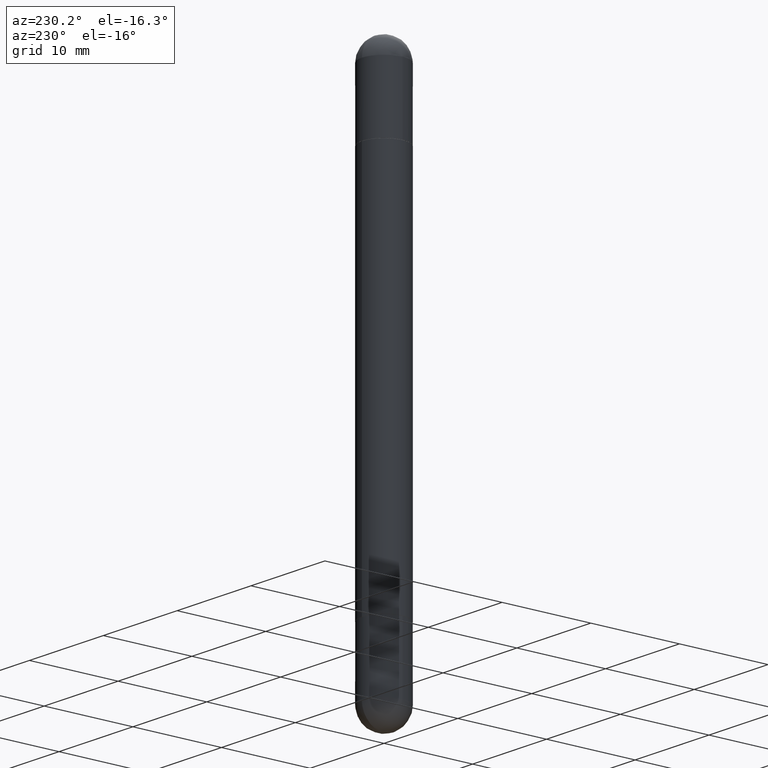
[diagram: clean part render]
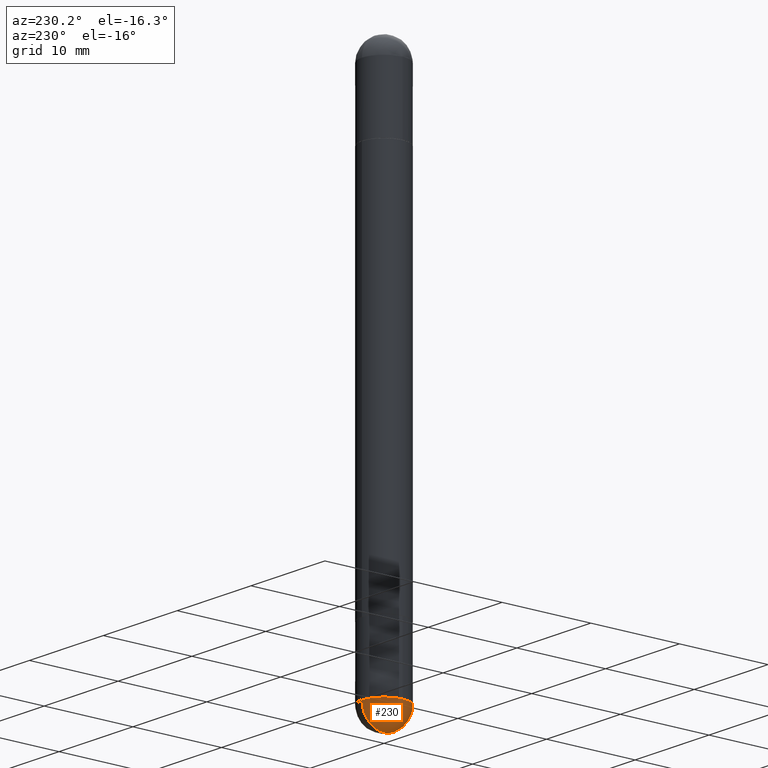
[diagram: same view with one face highlighted and labeled with its STEP entity id]
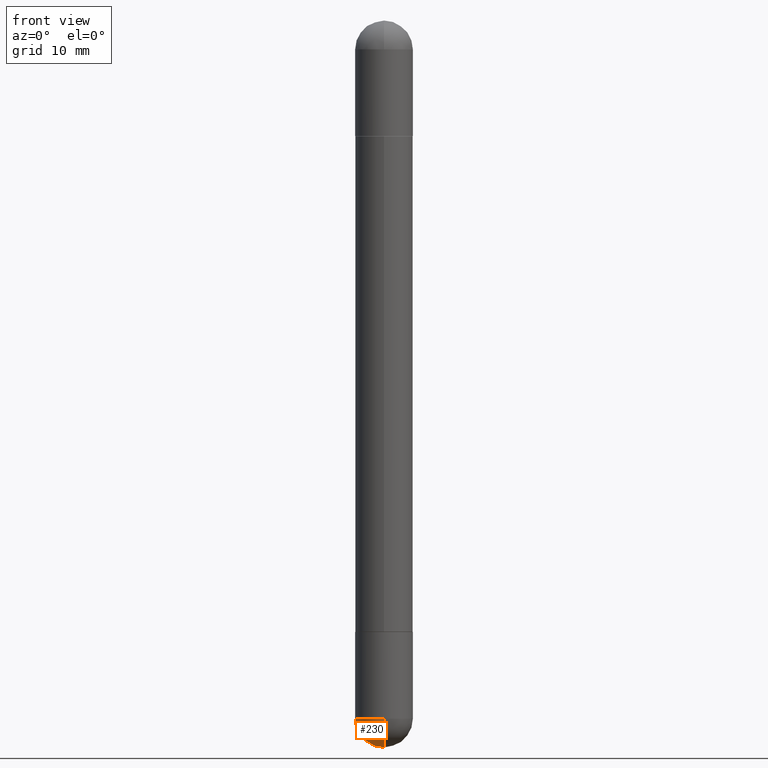
[diagram: same view with one face highlighted and labeled with its STEP entity id]
A machine part, auxiliary view. The second image highlights one B-rep face of the part: STEP entity #230.
A second angle (front view) of the same face is appended — the face is thin or edge-on in the first view.
In plain terms, the highlighted spherical surface has radius 2.5006 mm.
Its self-contained STEP definition (entity closure, byte-faithful):
#6 = DIRECTION ( 'NONE',  ( -1.000000000000000000, 7.105427357601001070E-15, -4.926315508542082329E-29 ) ) ;
#40 = CARTESIAN_POINT ( 'NONE',  ( -6.995293233557624958E-16, -0.09845000000000865559, -2.381850000000000023 ) ) ;
#62 = VERTEX_POINT ( 'NONE', #270 ) ;
#108 = SPHERICAL_SURFACE ( 'NONE', #310, 0.09845000000000017626 ) ;
#112 = CIRCLE ( 'NONE', #743, 0.09845000000000000973 ) ;
#115 = DIRECTION ( 'NONE',  ( 1.000000000000000000, -6.982962677686273810E-15, 0.000000000000000000 ) ) ;
#131 = CARTESIAN_POINT ( 'NONE',  ( 6.874726756182700483E-16, 0.09844999999999154427, -2.381850000000000911 ) ) ;
#164 = AXIS2_PLACEMENT_3D ( 'NONE', #436, #6, #259 ) ;
#167 = FACE_OUTER_BOUND ( 'NONE', #523, .T. ) ;
#201 = ORIENTED_EDGE ( 'NONE', *, *, #791, .F. ) ;
#209 = AXIS2_PLACEMENT_3D ( 'NONE', #359, #553, #669 ) ;
#230 = ADVANCED_FACE ( 'NONE', ( #167 ), #108, .T. ) ;
#248 = VERTEX_POINT ( 'NONE', #40 ) ;
#255 = EDGE_CURVE ( 'NONE', #62, #248, #112, .T. ) ;
#259 = DIRECTION ( 'NONE',  ( -7.105427357601001070E-15, -1.000000000000000000, 0.000000000000000000 ) ) ;
#269 = ORIENTED_EDGE ( 'NONE', *, *, #255, .F. ) ;
#270 = CARTESIAN_POINT ( 'NONE',  ( -0.09845000000000000973, -7.101225570921009731E-15, -2.381850000000000467 ) ) ;
#285 = CIRCLE ( 'NONE', #164, 0.09845000000000017626 ) ;
#289 = CARTESIAN_POINT ( 'NONE',  ( 5.824739876012068780E-29, -8.316184826923546689E-15, -2.381850000000000467 ) ) ;
#308 = VERTEX_POINT ( 'NONE', #131 ) ;
#310 = AXIS2_PLACEMENT_3D ( 'NONE', #422, #674, #429 ) ;
#326 = ORIENTED_EDGE ( 'NONE', *, *, #335, .T. ) ;
#335 = EDGE_CURVE ( 'NONE', #751, #248, #285, .T. ) ;
#336 = CIRCLE ( 'NONE', #209, 0.09845000000000017626 ) ;
#351 = ORIENTED_EDGE ( 'NONE', *, *, #683, .F. ) ;
#359 = CARTESIAN_POINT ( 'NONE',  ( 5.493620098098182533E-29, -8.790367195063598563E-15, -2.381850000000000467 ) ) ;
#422 = CARTESIAN_POINT ( 'NONE',  ( 5.493620098098182533E-29, -8.790367195063598563E-15, -2.381850000000000467 ) ) ;
#426 = DIRECTION ( 'NONE',  ( -2.445468806185136597E-29, 3.491481338843145583E-15, 1.000000000000000000 ) ) ;
#429 = DIRECTION ( 'NONE',  ( 6.982962677686265922E-15, 1.000000000000000000, -2.774858297271973643E-15 ) ) ;
#436 = CARTESIAN_POINT ( 'NONE',  ( 5.493620098098182533E-29, -8.790367195063598563E-15, -2.381850000000000467 ) ) ;
#523 = EDGE_LOOP ( 'NONE', ( #201, #326, #269, #351 ) ) ;
#548 = AXIS2_PLACEMENT_3D ( 'NONE', #785, #680, #736 ) ;
#553 = DIRECTION ( 'NONE',  ( 1.000000000000000000, -6.982962677686265922E-15, 4.883557194083112340E-29 ) ) ;
#655 = CIRCLE ( 'NONE', #548, 0.09845000000000000973 ) ;
#669 = DIRECTION ( 'NONE',  ( 6.982962677686265922E-15, 1.000000000000000000, 0.000000000000000000 ) ) ;
#674 = DIRECTION ( 'NONE',  ( -1.000000000000000000, 6.982962677686265922E-15, -4.883557194083112901E-29 ) ) ;
#680 = DIRECTION ( 'NONE',  ( -2.445468806185136597E-29, 3.491481338843145583E-15, 1.000000000000000000 ) ) ;
#683 = EDGE_CURVE ( 'NONE', #308, #62, #655, .T. ) ;
#736 = DIRECTION ( 'NONE',  ( 1.000000000000000000, -6.982962677686273810E-15, 0.000000000000000000 ) ) ;
#743 = AXIS2_PLACEMENT_3D ( 'NONE', #289, #426, #115 ) ;
#751 = VERTEX_POINT ( 'NONE', #804 ) ;
#785 = CARTESIAN_POINT ( 'NONE',  ( 5.824739876012068780E-29, -8.316184826923546689E-15, -2.381850000000000467 ) ) ;
#791 = EDGE_CURVE ( 'NONE', #751, #308, #336, .T. ) ;
#804 = CARTESIAN_POINT ( 'NONE',  ( 5.738586058125595532E-29, -9.128075209003904434E-15, -2.480300000000001059 ) ) ;